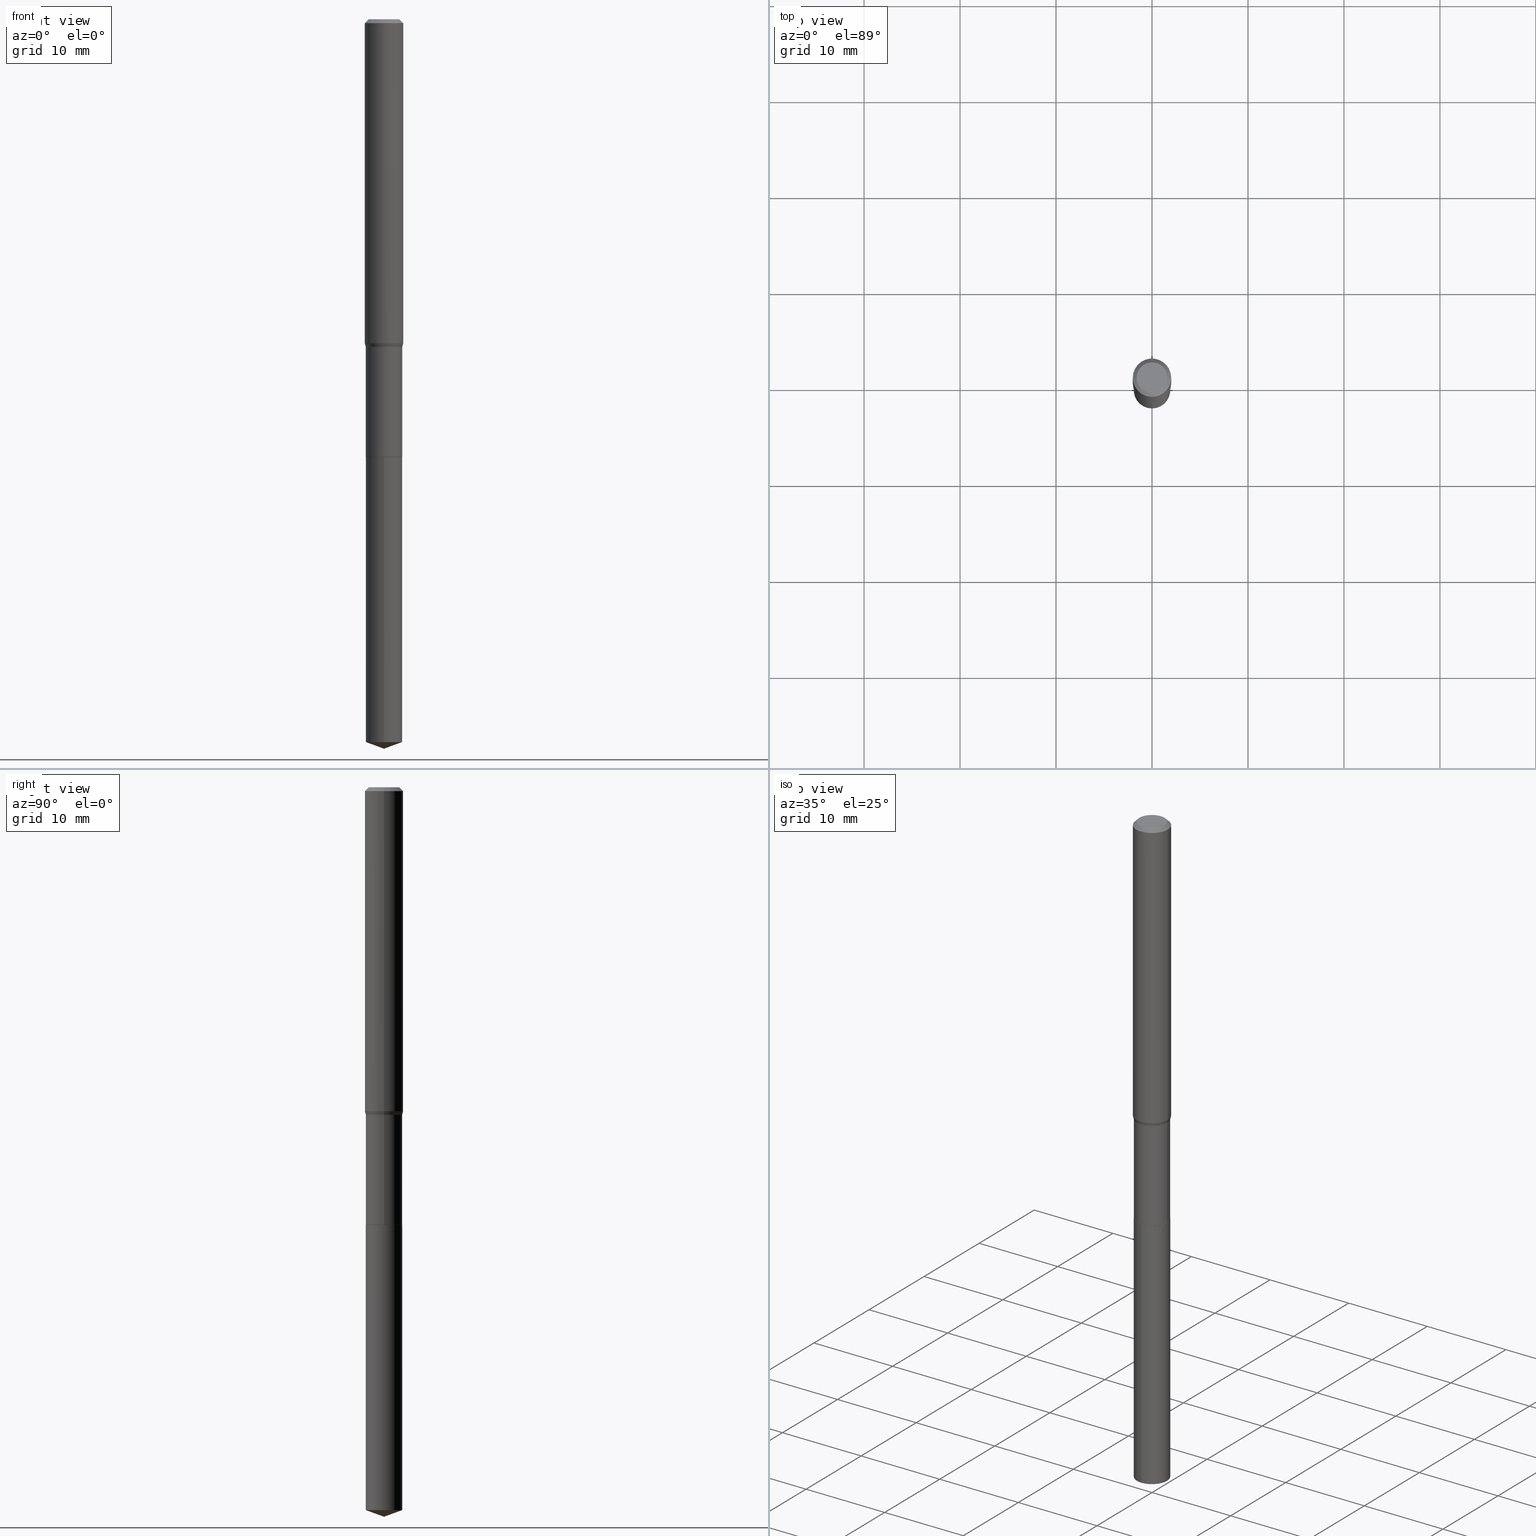
[diagram: canonical four-view strip — front | top / right | iso, engineering-drawing reading convention]
A machine part, canonical four-view strip (front | top / right | iso — engineering-drawing reading convention). The complete STEP part file that produces these views, byte-faithful:
ISO-10303-21;
HEADER;
FILE_DESCRIPTION (( 'STEP AP203' ),
    '1' );
FILE_NAME ('06028.STEP',
    '2024-04-23T19:04:33',
    ( '' ),
    ( '' ),
    'SwSTEP 2.0',
    'SolidWorks 2023',
    '' );
FILE_SCHEMA (( 'CONFIG_CONTROL_DESIGN' ));
ENDSEC;

DATA;
#1 = ORIENTED_EDGE ( 'NONE', *, *, #405, .F. ) ;
#2 = DIRECTION ( 'NONE',  ( 1.000000000000000000, -6.982962677686261977E-15, 0.000000000000000000 ) ) ;
#3 = EDGE_CURVE ( 'NONE', #382, #377, #412, .T. ) ;
#4 = APPROVAL ( #387, 'UNSPECIFIED' ) ;
#5 = AXIS2_PLACEMENT_3D ( 'NONE', #85, #93, #472 ) ;
#6 = CIRCLE ( 'NONE', #70, 0.07875000000000001443 ) ;
#7 = AXIS2_PLACEMENT_3D ( 'NONE', #413, #461, #341 ) ;
#8 = LINE ( 'NONE', #325, #365 ) ;
#9 = ADVANCED_FACE ( 'NONE', ( #198 ), #117, .T. ) ;
#10 = CARTESIAN_POINT ( 'NONE',  ( 4.390350147744175110E-29, -6.268256447625098416E-15, -1.795299999999999896 ) ) ;
#11 = FACE_OUTER_BOUND ( 'NONE', #319, .T. ) ;
#12 = MANIFOLD_SOLID_BREP ( 'Body-Move/Copy2[2]', #55 ) ;
#13 = CIRCLE ( 'NONE', #37, 0.07480000000000000537 ) ;
#14 = ORIENTED_EDGE ( 'NONE', *, *, #178, .F. ) ;
#15 = AXIS2_PLACEMENT_3D ( 'NONE', #10, #155, #20 ) ;
#16 = DIRECTION ( 'NONE',  ( -2.445468806185136597E-29, 3.491481338843145583E-15, 1.000000000000000000 ) ) ;
#17 = DIRECTION ( 'NONE',  ( -2.445469532295098656E-29, 3.491480299012352095E-15, 1.000000000000000000 ) ) ;
#18 = CALENDAR_DATE ( 2024, 23, 4 ) ;
#19 = LINE ( 'NONE', #385, #92 ) ;
#20 = DIRECTION ( 'NONE',  ( 1.000000000000000000, -6.982962677686268288E-15, 0.000000000000000000 ) ) ;
#21 = APPROVAL_ROLE ( '' ) ;
#22 = DIRECTION ( 'NONE',  ( -2.445468806185136597E-29, 3.491481338843145583E-15, 1.000000000000000000 ) ) ;
#23 = DATE_TIME_ROLE ( 'creation_date' ) ;
#24 = AXIS2_PLACEMENT_3D ( 'NONE', #238, #187, #420 ) ;
#25 = CARTESIAN_POINT ( 'NONE',  ( -0.07479999999999997762, 5.314859663485547800E-16, -3.679363447510668680E-30 ) ) ;
#26 = PERSON_AND_ORGANIZATION_ROLE ( 'creator' ) ;
#27 = DESIGN_CONTEXT ( 'detailed design', #333, 'design' ) ;
#28 = DIRECTION ( 'NONE',  ( 2.445468806185136597E-29, -3.491481338843145583E-15, -1.000000000000000000 ) ) ;
#29 = AXIS2_PLACEMENT_3D ( 'NONE', #138, #439, #223 ) ;
#30 = CC_DESIGN_APPROVAL ( #261, ( #443 ) ) ;
#31 = CARTESIAN_POINT ( 'NONE',  ( 3.285976434870968470E-29, -4.691503475003534862E-15, -1.343699999999999894 ) ) ;
#32 = CIRCLE ( 'NONE', #357, 0.07430000000000000493 ) ;
#33 = CARTESIAN_POINT ( 'NONE',  ( 5.314859663485988576E-16, 0.07479999999999373261, -1.795300000000000118 ) ) ;
#34 = CARTESIAN_POINT ( 'NONE',  ( 7.317089387580165340E-29, -1.044685820267485836E-14, -2.992100000000000204 ) ) ;
#35 = CARTESIAN_POINT ( 'NONE',  ( -5.223256082908888214E-16, -0.07480000000000626426, -1.795299999999999452 ) ) ;
#36 = CARTESIAN_POINT ( 'NONE',  ( -0.07480000000000000537, -4.947521124631050713E-15, -1.794799999999999951 ) ) ;
#37 = AXIS2_PLACEMENT_3D ( 'NONE', #477, #408, #397 ) ;
#38 = ADVANCED_FACE ( 'NONE', ( #335 ), #381, .T. ) ;
#39 = DIRECTION ( 'NONE',  ( -2.445468806185136597E-29, 3.491481338843145583E-15, 1.000000000000000000 ) ) ;
#40 = CARTESIAN_POINT ( 'NONE',  ( 4.390350147744175110E-29, -6.268256447625098416E-15, -1.795299999999999896 ) ) ;
#41 = CARTESIAN_POINT ( 'NONE',  ( 4.390350147744175110E-29, -6.268256447625098416E-15, -1.795299999999999896 ) ) ;
#42 = ORIENTED_EDGE ( 'NONE', *, *, #328, .T. ) ;
#43 =( LENGTH_UNIT ( ) NAMED_UNIT ( * ) SI_UNIT ( $, .METRE. ) );
#44 = PLANE ( 'NONE',  #275 ) ;
#45 = ADVANCED_FACE ( 'NONE', ( #164 ), #306, .T. ) ;
#46 = DIRECTION ( 'NONE',  ( 1.000000000000000000, -6.982962677686268288E-15, 0.000000000000000000 ) ) ;
#47 = EDGE_LOOP ( 'NONE', ( #129, #488, #210, #52 ) ) ;
#48 = DIRECTION ( 'NONE',  ( -2.445468806185136597E-29, 3.491481338843145583E-15, 1.000000000000000000 ) ) ;
#49 = ORIENTED_EDGE ( 'NONE', *, *, #226, .F. ) ;
#50 = CC_DESIGN_DATE_AND_TIME_ASSIGNMENT ( #466, #422, ( #443 ) ) ;
#51 = DIRECTION ( 'NONE',  ( -2.445468806185136597E-29, 3.491481338843145583E-15, 1.000000000000000000 ) ) ;
#52 = ORIENTED_EDGE ( 'NONE', *, *, #131, .F. ) ;
#53 = CARTESIAN_POINT ( 'NONE',  ( 9.427742298522557911E-47, -1.346031739168366987E-32, -3.855188123715866879E-18 ) ) ;
#54 = VERTEX_POINT ( 'NONE', #423 ) ;
#55 = CLOSED_SHELL ( 'NONE', ( #38, #200, #482, #258, #56, #336, #193, #45, #68, #242, #98, #474 ) ) ;
#56 = ADVANCED_FACE ( 'NONE', ( #419 ), #297, .T. ) ;
#57 = ORIENTED_EDGE ( 'NONE', *, *, #302, .T. ) ;
#58 = CARTESIAN_POINT ( 'NONE',  ( 4.390350147744175110E-29, -6.268256447625098416E-15, -1.795299999999999896 ) ) ;
#59 = EDGE_LOOP ( 'NONE', ( #354, #202 ) ) ;
#60 = APPROVAL_ROLE ( '' ) ;
#61 = ORIENTED_EDGE ( 'NONE', *, *, #459, .F. ) ;
#62 = VERTEX_POINT ( 'NONE', #136 ) ;
#63 = COORDINATED_UNIVERSAL_TIME_OFFSET ( 5, 0, .BEHIND. ) ;
#64 = EDGE_CURVE ( 'NONE', #421, #277, #281, .T. ) ;
#65 = DIRECTION ( 'NONE',  ( -1.000000000000000000, 6.982962677686267499E-15, 0.000000000000000000 ) ) ;
#66 = CONICAL_SURFACE ( 'NONE', #253, 0.07430000000000000493, 0.7853981633975507526 ) ;
#67 = FACE_OUTER_BOUND ( 'NONE', #209, .T. ) ;
#68 = ADVANCED_FACE ( 'NONE', ( #434 ), #442, .T. ) ;
#69 = VECTOR ( 'NONE', #315, 39.37007874015748143 ) ;
#70 = AXIS2_PLACEMENT_3D ( 'NONE', #288, #220, #440 ) ;
#71 = DIRECTION ( 'NONE',  ( -2.445469532295098656E-29, 3.491480299012352095E-15, 1.000000000000000000 ) ) ;
#72 = VECTOR ( 'NONE', #206, 39.37007874015748143 ) ;
#73 = ORIENTED_EDGE ( 'NONE', *, *, #427, .F. ) ;
#74 = DIMENSIONAL_EXPONENTS ( 1.000000000000000000, 0.000000000000000000, 0.000000000000000000, 0.000000000000000000, 0.000000000000000000, 0.000000000000000000, 0.000000000000000000 ) ;
#75 = CARTESIAN_POINT ( 'NONE',  ( 0.07479999999999994986, -5.213829083294466873E-15, -1.343699999999999894 ) ) ;
#76 = EDGE_CURVE ( 'NONE', #377, #112, #352, .T. ) ;
#77 = ORIENTED_EDGE ( 'NONE', *, *, #316, .F. ) ;
#78 = AXIS2_PLACEMENT_3D ( 'NONE', #367, #414, #84 ) ;
#79 = LINE ( 'NONE', #33, #69 ) ;
#80 = LOCAL_TIME ( 15, 4, 33.00000000000000000, #63 ) ;
#81 = FACE_OUTER_BOUND ( 'NONE', #240, .T. ) ;
#82 = EDGE_LOOP ( 'NONE', ( #162, #342, #179, #279 ) ) ;
#83 = APPROVAL ( #435, 'UNSPECIFIED' ) ;
#84 = DIRECTION ( 'NONE',  ( -6.982962677686265133E-15, -1.000000000000000000, 3.475157955500721003E-15 ) ) ;
#85 = CARTESIAN_POINT ( 'NONE',  ( 0.000000000000000000, 0.000000000000000000, 0.000000000000000000 ) ) ;
#86 = FACE_OUTER_BOUND ( 'NONE', #59, .T. ) ;
#87 = ORIENTED_EDGE ( 'NONE', *, *, #171, .F. ) ;
#88 = CALENDAR_DATE ( 2024, 23, 4 ) ;
#89 = CC_DESIGN_PERSON_AND_ORGANIZATION_ASSIGNMENT ( #300, #241, ( #394 ) ) ;
#90 = ORIENTED_EDGE ( 'NONE', *, *, #362, .T. ) ;
#91 = DIRECTION ( 'NONE',  ( -2.445469532295098656E-29, 3.491480299012352095E-15, 1.000000000000000000 ) ) ;
#92 = VECTOR ( 'NONE', #161, 39.37007874015748143 ) ;
#93 = DIRECTION ( 'NONE',  ( -2.445468806185136597E-29, 3.491481338843145583E-15, 1.000000000000000000 ) ) ;
#94 = CONICAL_SURFACE ( 'NONE', #78, 108.1684023407334365, 1.221730476396031495 ) ;
#95 = ORIENTED_EDGE ( 'NONE', *, *, #235, .F. ) ;
#96 = PERSON_AND_ORGANIZATION_ROLE ( 'design_supplier' ) ;
#97 = ORIENTED_EDGE ( 'NONE', *, *, #263, .T. ) ;
#98 = ADVANCED_FACE ( 'NONE', ( #481 ), #44, .F. ) ;
#99 = ORIENTED_EDGE ( 'NONE', *, *, #76, .T. ) ;
#100 = PERSON_AND_ORGANIZATION ( #455, #128 ) ;
#101 = EDGE_LOOP ( 'NONE', ( #463, #294, #208, #140 ) ) ;
#102 = CARTESIAN_POINT ( 'NONE',  ( 3.851613369741618303E-31, -5.499083108677994470E-17, -0.01575000000000011460 ) ) ;
#103 = PERSON_AND_ORGANIZATION ( #455, #128 ) ;
#104 =( GEOMETRIC_REPRESENTATION_CONTEXT ( 3 ) GLOBAL_UNCERTAINTY_ASSIGNED_CONTEXT ( ( #285 ) ) GLOBAL_UNIT_ASSIGNED_CONTEXT ( ( #230, #192, #156 ) ) REPRESENTATION_CONTEXT ( 'NONE', 'WORKASPACE' ) );
#105 = EDGE_LOOP ( 'NONE', ( #363, #124, #445 ) ) ;
#106 = ADVANCED_FACE ( 'NONE', ( #262 ), #94, .T. ) ;
#107 = FACE_OUTER_BOUND ( 'NONE', #386, .T. ) ;
#108 = ORIENTED_EDGE ( 'NONE', *, *, #310, .T. ) ;
#109 = CIRCLE ( 'NONE', #132, 0.07875000000000016709 ) ;
#110 = CIRCLE ( 'NONE', #205, 0.07480000000000000537 ) ;
#111 = CARTESIAN_POINT ( 'NONE',  ( 5.314859663486276510E-16, 0.07479999999999373261, -1.795300000000000118 ) ) ;
#112 = VERTEX_POINT ( 'NONE', #147 ) ;
#113 = DIRECTION ( 'NONE',  ( 6.676917655467968129E-15, 0.9396926207859097602, 0.3420201433256646606 ) ) ;
#114 = CARTESIAN_POINT ( 'NONE',  ( 4.390350147744175110E-29, -6.268256447625098416E-15, -1.795299999999999896 ) ) ;
#115 = DIRECTION ( 'NONE',  ( -2.438088387897960049E-29, 3.491481338843145188E-15, 1.000000000000000000 ) ) ;
#116 = DIRECTION ( 'NONE',  ( 1.000000000000000000, -6.982962677686265922E-15, 4.875905316334701673E-29 ) ) ;
#117 = CONICAL_SURFACE ( 'NONE', #173, 108.1684023407334365, 1.221730476396031495 ) ;
#118 = AXIS2_PLACEMENT_3D ( 'NONE', #298, #123, #268 ) ;
#119 = AXIS2_PLACEMENT_3D ( 'NONE', #320, #484, #441 ) ;
#120 = ADVANCED_FACE ( 'NONE', ( #107 ), #457, .T. ) ;
#121 = ORIENTED_EDGE ( 'NONE', *, *, #286, .F. ) ;
#122 = DIRECTION ( 'NONE',  ( -2.445468806185136597E-29, 3.491481338843145583E-15, 1.000000000000000000 ) ) ;
#123 = DIRECTION ( 'NONE',  ( -2.445468806185136597E-29, 3.491481338843145583E-15, 1.000000000000000000 ) ) ;
#124 = ORIENTED_EDGE ( 'NONE', *, *, #226, .T. ) ;
#125 = SECURITY_CLASSIFICATION_LEVEL ( 'unclassified' ) ;
#126 = VERTEX_POINT ( 'NONE', #312 ) ;
#127 = AXIS2_PLACEMENT_3D ( 'NONE', #174, #486, #399 ) ;
#128 = ORGANIZATION ( 'UNSPECIFIED', 'UNSPECIFIED', '' ) ;
#129 = ORIENTED_EDGE ( 'NONE', *, *, #257, .F. ) ;
#130 = DATE_AND_TIME ( #18, #137 ) ;
#131 = EDGE_CURVE ( 'NONE', #456, #133, #372, .T. ) ;
#132 = AXIS2_PLACEMENT_3D ( 'NONE', #190, #379, #271 ) ;
#133 = VERTEX_POINT ( 'NONE', #284 ) ;
#134 = CALENDAR_DATE ( 2024, 23, 4 ) ;
#135 = CC_DESIGN_PERSON_AND_ORGANIZATION_ASSIGNMENT ( #233, #96, ( #436 ) ) ;
#136 = CARTESIAN_POINT ( 'NONE',  ( -0.06300000000000000044, 4.674220642376242452E-16, -3.855188123719040041E-18 ) ) ;
#137 = LOCAL_TIME ( 15, 4, 33.00000000000000000, #245 ) ;
#138 = CARTESIAN_POINT ( 'NONE',  ( 4.389127413341082869E-29, -6.266510706955676913E-15, -1.794799999999999951 ) ) ;
#139 = CARTESIAN_POINT ( 'NONE',  ( -0.07479999999999994986, -4.160017508654980082E-15, -1.343699999999999894 ) ) ;
#140 = ORIENTED_EDGE ( 'NONE', *, *, #469, .F. ) ;
#141 = CARTESIAN_POINT ( 'NONE',  ( 7.317089410441971995E-29, -1.044685820267485994E-14, -2.992100000000000204 ) ) ;
#142 = ADVANCED_BREP_SHAPE_REPRESENTATION ( '06028', ( #331, #12, #339 ), #104 ) ;
#143 = DIRECTION ( 'NONE',  ( -6.982962677686265922E-15, -1.000000000000000000, 3.652203200085913145E-15 ) ) ;
#144 = CARTESIAN_POINT ( 'NONE',  ( 3.851613369741618303E-31, -5.499083108677994470E-17, -0.01575000000000011460 ) ) ;
#145 = CC_DESIGN_APPROVAL ( #83, ( #436 ) ) ;
#146 = DIRECTION ( 'NONE',  ( 1.000000000000000000, -6.982962677686266711E-15, 0.000000000000000000 ) ) ;
#147 = CARTESIAN_POINT ( 'NONE',  ( 0.07480000000000000537, -6.788836315246609713E-15, -1.794799999999999951 ) ) ;
#148 = DIRECTION ( 'NONE',  ( -2.445468806185136597E-29, 3.491481338843145583E-15, 1.000000000000000000 ) ) ;
#149 = LINE ( 'NONE', #364, #321 ) ;
#150 = EDGE_CURVE ( 'NONE', #433, #133, #180, .T. ) ;
#151 = CYLINDRICAL_SURFACE ( 'NONE', #402, 0.07875000000000008382 ) ;
#152 = CIRCLE ( 'NONE', #340, 0.06300000000000000044 ) ;
#153 = CONICAL_SURFACE ( 'NONE', #239, 0.07875000000000001443, 0.7853981633974452814 ) ;
#154 = FACE_OUTER_BOUND ( 'NONE', #232, .T. ) ;
#155 = DIRECTION ( 'NONE',  ( -2.445468806185136597E-29, 3.491481338843145583E-15, 1.000000000000000000 ) ) ;
#156 =( NAMED_UNIT ( * ) SI_UNIT ( $, .STERADIAN. ) SOLID_ANGLE_UNIT ( ) );
#157 = LOCAL_TIME ( 15, 4, 33.00000000000000000, #278 ) ;
#158 = CYLINDRICAL_SURFACE ( 'NONE', #118, 0.07479999999999997762 ) ;
#159 = ORIENTED_EDGE ( 'NONE', *, *, #171, .T. ) ;
#160 = EDGE_LOOP ( 'NONE', ( #87, #90, #309, #453 ) ) ;
#161 = DIRECTION ( 'NONE',  ( -2.445468806185136877E-29, 3.491481338843145188E-15, 1.000000000000000000 ) ) ;
#162 = ORIENTED_EDGE ( 'NONE', *, *, #378, .F. ) ;
#163 = LINE ( 'NONE', #468, #425 ) ;
#164 = FACE_OUTER_BOUND ( 'NONE', #47, .T. ) ;
#165 = APPROVAL_DATE_TIME ( #471, #83 ) ;
#166 = CIRCLE ( 'NONE', #24, 0.07480000000000000537 ) ;
#167 = CC_DESIGN_APPROVAL ( #4, ( #452 ) ) ;
#168 = ORIENTED_EDGE ( 'NONE', *, *, #3, .T. ) ;
#169 = DIRECTION ( 'NONE',  ( 2.445468806185136597E-29, -3.491481338843145583E-15, -1.000000000000000000 ) ) ;
#170 = PERSON_AND_ORGANIZATION_ROLE ( 'classification_officer' ) ;
#171 = EDGE_CURVE ( 'NONE', #314, #444, #79, .T. ) ;
#172 = DIRECTION ( 'NONE',  ( -2.445469532295098656E-29, 3.491480299012352095E-15, 1.000000000000000000 ) ) ;
#173 = AXIS2_PLACEMENT_3D ( 'NONE', #349, #17, #244 ) ;
#174 = CARTESIAN_POINT ( 'NONE',  ( 3.285976434870968470E-29, -4.691503475003534862E-15, -1.343699999999999894 ) ) ;
#175 = CARTESIAN_POINT ( 'NONE',  ( -5.223256082908604224E-16, -0.07480000000001037208, -2.964875026476887943 ) ) ;
#176 = DIRECTION ( 'NONE',  ( -2.445468806185136597E-29, 3.491481338843145583E-15, 1.000000000000000000 ) ) ;
#177 = ORIENTED_EDGE ( 'NONE', *, *, #378, .T. ) ;
#178 = EDGE_CURVE ( 'NONE', #416, #126, #287, .T. ) ;
#179 = ORIENTED_EDGE ( 'NONE', *, *, #370, .T. ) ;
#180 = LINE ( 'NONE', #489, #283 ) ;
#181 = VECTOR ( 'NONE', #355, 39.37007874015748854 ) ;
#182 = CARTESIAN_POINT ( 'NONE',  ( 0.06300000000000000044, -5.137332111354473202E-16, -3.855188123712532709E-18 ) ) ;
#183 = DIRECTION ( 'NONE',  ( 1.000000000000000000, -6.982962677686268288E-15, 0.000000000000000000 ) ) ;
#184 = DIRECTION ( 'NONE',  ( -2.445469532295098656E-29, 3.491480299012352095E-15, 1.000000000000000000 ) ) ;
#185 = CIRCLE ( 'NONE', #475, 0.07875000000000016709 ) ;
#186 = AXIS2_PLACEMENT_3D ( 'NONE', #217, #172, #254 ) ;
#187 = DIRECTION ( 'NONE',  ( -2.445469532295098656E-29, 3.491480299012352095E-15, 1.000000000000000000 ) ) ;
#188 = ORIENTED_EDGE ( 'NONE', *, *, #3, .F. ) ;
#189 = FACE_OUTER_BOUND ( 'NONE', #229, .T. ) ;
#190 = CARTESIAN_POINT ( 'NONE',  ( 3.249926310230585546E-29, -4.640033451290079413E-15, -1.328958399310102179 ) ) ;
#191 = ORIENTED_EDGE ( 'NONE', *, *, #257, .T. ) ;
#192 =( NAMED_UNIT ( * ) PLANE_ANGLE_UNIT ( ) SI_UNIT ( $, .RADIAN. ) );
#193 = ADVANCED_FACE ( 'NONE', ( #248 ), #236, .T. ) ;
#194 = CARTESIAN_POINT ( 'NONE',  ( 5.314859663486275524E-16, 0.07479999999998968030, -2.964875026476887943 ) ) ;
#195 = ORIENTED_EDGE ( 'NONE', *, *, #302, .F. ) ;
#196 = PRODUCT_DEFINITION_SHAPE ( 'NONE', 'NONE',  #452 ) ;
#197 = CARTESIAN_POINT ( 'NONE',  ( -0.07875000000000001443, 4.949174797810137153E-16, -0.01575000000000011460 ) ) ;
#198 = FACE_OUTER_BOUND ( 'NONE', #404, .T. ) ;
#199 = APPROVAL_DATE_TIME ( #130, #261 ) ;
#200 = ADVANCED_FACE ( 'NONE', ( #67 ), #153, .T. ) ;
#201 = DIRECTION ( 'NONE',  ( 2.445469532295098376E-29, -3.491480299012352095E-15, -1.000000000000000000 ) ) ;
#202 = ORIENTED_EDGE ( 'NONE', *, *, #323, .T. ) ;
#203 = APPROVAL_DATE_TIME ( #207, #4 ) ;
#204 = VERTEX_POINT ( 'NONE', #446 ) ;
#205 = AXIS2_PLACEMENT_3D ( 'NONE', #360, #324, #2 ) ;
#206 = DIRECTION ( 'NONE',  ( -2.445468806185136877E-29, 3.491481338843145188E-15, 1.000000000000000000 ) ) ;
#207 = DATE_AND_TIME ( #424, #157 ) ;
#208 = ORIENTED_EDGE ( 'NONE', *, *, #222, .F. ) ;
#209 = EDGE_LOOP ( 'NONE', ( #269, #391, #406, #195 ) ) ;
#210 = ORIENTED_EDGE ( 'NONE', *, *, #316, .T. ) ;
#211 = CIRCLE ( 'NONE', #127, 0.07479999999999994986 ) ;
#212 = LINE ( 'NONE', #141, #384 ) ;
#213 = CIRCLE ( 'NONE', #483, 0.07480000000000000537 ) ;
#214 = CARTESIAN_POINT ( 'NONE',  ( -0.07875000000000001443, -1.787959736777349389E-15, -0.01575000000000011460 ) ) ;
#215 = EDGE_CURVE ( 'NONE', #112, #421, #252, .T. ) ;
#216 = ORIENTED_EDGE ( 'NONE', *, *, #131, .T. ) ;
#217 = CARTESIAN_POINT ( 'NONE',  ( 4.390350147744175110E-29, -6.268256447625098416E-15, -1.795299999999999896 ) ) ;
#218 = DIRECTION ( 'NONE',  ( -2.445468806185136597E-29, 3.491481338843145583E-15, 1.000000000000000000 ) ) ;
#219 = APPROVAL_PERSON_ORGANIZATION ( #100, #261, #270 ) ;
#220 = DIRECTION ( 'NONE',  ( -2.445468806185136597E-29, 3.491481338843145583E-15, 1.000000000000000000 ) ) ;
#221 = AXIS2_PLACEMENT_3D ( 'NONE', #431, #122, #346 ) ;
#222 = EDGE_CURVE ( 'NONE', #467, #277, #211, .T. ) ;
#223 = DIRECTION ( 'NONE',  ( 1.000000000000000000, -6.982962677686261977E-15, 0.000000000000000000 ) ) ;
#224 = DIRECTION ( 'NONE',  ( -0.7071067811866199593, 7.493145998870616062E-15, 0.7071067811864750752 ) ) ;
#225 = ORIENTED_EDGE ( 'NONE', *, *, #370, .F. ) ;
#226 = EDGE_CURVE ( 'NONE', #465, #314, #212, .T. ) ;
#227 = CARTESIAN_POINT ( 'NONE',  ( 4.390350147744175110E-29, -6.268256447625098416E-15, -1.795299999999999896 ) ) ;
#228 = CARTESIAN_POINT ( 'NONE',  ( 4.390350147744175110E-29, -6.268256447625098416E-15, -1.795299999999999896 ) ) ;
#229 = EDGE_LOOP ( 'NONE', ( #460, #191, #73, #77 ) ) ;
#230 =( CONVERSION_BASED_UNIT ( 'INCH', #327 ) LENGTH_UNIT ( ) NAMED_UNIT ( #74 ) );
#231 = PLANE ( 'NONE',  #373 ) ;
#232 = EDGE_LOOP ( 'NONE', ( #267, #177, #121, #225 ) ) ;
#233 = PERSON_AND_ORGANIZATION ( #455, #128 ) ;
#234 = EDGE_LOOP ( 'NONE', ( #97, #243, #375, #299 ) ) ;
#235 = EDGE_CURVE ( 'NONE', #126, #444, #213, .T. ) ;
#236 = CONICAL_SURFACE ( 'NONE', #255, 0.07479999999999994986, 0.2617993877991521279 ) ;
#237 = APPROVAL_PERSON_ORGANIZATION ( #273, #4, #60 ) ;
#238 = CARTESIAN_POINT ( 'NONE',  ( 7.250510240726639797E-29, -1.035180461078600509E-14, -2.964875026476887943 ) ) ;
#239 = AXIS2_PLACEMENT_3D ( 'NONE', #144, #28, #317 ) ;
#240 = EDGE_LOOP ( 'NONE', ( #108, #380 ) ) ;
#241 = PERSON_AND_ORGANIZATION_ROLE ( 'design_owner' ) ;
#242 = ADVANCED_FACE ( 'NONE', ( #81 ), #415, .F. ) ;
#243 = ORIENTED_EDGE ( 'NONE', *, *, #485, .T. ) ;
#244 = DIRECTION ( 'NONE',  ( -6.982962677686265133E-15, -1.000000000000000000, 3.475157955500721003E-15 ) ) ;
#245 = COORDINATED_UNIVERSAL_TIME_OFFSET ( 5, 0, .BEHIND. ) ;
#246 = AXIS2_PLACEMENT_3D ( 'NONE', #487, #71, #143 ) ;
#247 = PERSON_AND_ORGANIZATION_ROLE ( 'creator' ) ;
#248 = FACE_OUTER_BOUND ( 'NONE', #82, .T. ) ;
#249 = DIRECTION ( 'NONE',  ( 1.000000000000000000, -6.982962677686266711E-15, 0.000000000000000000 ) ) ;
#250 = EDGE_CURVE ( 'NONE', #204, #54, #185, .T. ) ;
#251 = CARTESIAN_POINT ( 'NONE',  ( 0.07430000000000000493, -6.787090574577188210E-15, -1.795299999999999896 ) ) ;
#252 = CIRCLE ( 'NONE', #29, 0.07480000000000000537 ) ;
#253 = AXIS2_PLACEMENT_3D ( 'NONE', #114, #39, #183 ) ;
#254 = DIRECTION ( 'NONE',  ( -6.982962677686265922E-15, -1.000000000000000000, 3.652203200085913145E-15 ) ) ;
#255 = AXIS2_PLACEMENT_3D ( 'NONE', #396, #176, #249 ) ;
#256 = CARTESIAN_POINT ( 'NONE',  ( 9.427742298522557911E-47, -1.346031739168366987E-32, -3.855188123715866879E-18 ) ) ;
#257 = EDGE_CURVE ( 'NONE', #204, #456, #19, .T. ) ;
#258 = ADVANCED_FACE ( 'NONE', ( #154 ), #454, .T. ) ;
#259 = APPLICATION_PROTOCOL_DEFINITION ( 'international standard', 'config_control_design', 1994, #326 ) ;
#260 = DIRECTION ( 'NONE',  ( 1.000000000000000000, -6.982962677686265922E-15, 4.876176775795935793E-29 ) ) ;
#261 = APPROVAL ( #473, 'UNSPECIFIED' ) ;
#262 = FACE_OUTER_BOUND ( 'NONE', #105, .T. ) ;
#263 = EDGE_CURVE ( 'NONE', #377, #382, #32, .T. ) ;
#264 = EDGE_LOOP ( 'NONE', ( #338, #295, #57, #216 ) ) ;
#265 = DIRECTION ( 'NONE',  ( 1.000000000000000000, -6.982962677686266711E-15, 0.000000000000000000 ) ) ;
#266 = AXIS2_PLACEMENT_3D ( 'NONE', #31, #218, #146 ) ;
#267 = ORIENTED_EDGE ( 'NONE', *, *, #222, .T. ) ;
#268 = DIRECTION ( 'NONE',  ( 1.000000000000000000, -6.982962677686266711E-15, 4.876176775795935793E-29 ) ) ;
#269 = ORIENTED_EDGE ( 'NONE', *, *, #388, .F. ) ;
#270 = APPROVAL_ROLE ( '' ) ;
#271 = DIRECTION ( 'NONE',  ( 1.000000000000000000, -6.982962677686271444E-15, 0.000000000000000000 ) ) ;
#272 = ORIENTED_EDGE ( 'NONE', *, *, #485, .F. ) ;
#273 = PERSON_AND_ORGANIZATION ( #455, #128 ) ;
#274 = CC_DESIGN_DATE_AND_TIME_ASSIGNMENT ( #347, #23, ( #452 ) ) ;
#275 = AXIS2_PLACEMENT_3D ( 'NONE', #40, #115, #260 ) ;
#276 = VECTOR ( 'NONE', #449, 39.37007874015748143 ) ;
#277 = VERTEX_POINT ( 'NONE', #464 ) ;
#278 = COORDINATED_UNIVERSAL_TIME_OFFSET ( 5, 0, .BEHIND. ) ;
#279 = ORIENTED_EDGE ( 'NONE', *, *, #250, .F. ) ;
#280 = APPLICATION_PROTOCOL_DEFINITION ( 'international standard', 'config_control_design', 1994, #333 ) ;
#281 = LINE ( 'NONE', #25, #72 ) ;
#282 = VECTOR ( 'NONE', #318, 39.37007874015748854 ) ;
#283 = VECTOR ( 'NONE', #407, 39.37007874015748143 ) ;
#284 = CARTESIAN_POINT ( 'NONE',  ( 0.07875000000000001443, -6.048991419545735677E-16, -0.01575000000000011460 ) ) ;
#285 = UNCERTAINTY_MEASURE_WITH_UNIT (LENGTH_MEASURE( 1.000000000000000082E-05 ), #230, 'distance_accuracy_value', 'NONE');
#286 = EDGE_CURVE ( 'NONE', #54, #204, #109, .T. ) ;
#287 = LINE ( 'NONE', #35, #428 ) ;
#288 = CARTESIAN_POINT ( 'NONE',  ( 3.851613369741618303E-31, -5.499083108677994470E-17, -0.01575000000000011460 ) ) ;
#289 = FACE_OUTER_BOUND ( 'NONE', #160, .T. ) ;
#290 = CIRCLE ( 'NONE', #476, 0.06300000000000000044 ) ;
#291 = LINE ( 'NONE', #292, #276 ) ;
#292 = CARTESIAN_POINT ( 'NONE',  ( 0.07479999999999997762, -5.223256082909326032E-16, 3.647380228295358762E-30 ) ) ;
#293 = CARTESIAN_POINT ( 'NONE',  ( 0.000000000000000000, 0.000000000000000000, 0.000000000000000000 ) ) ;
#294 = ORIENTED_EDGE ( 'NONE', *, *, #64, .T. ) ;
#295 = ORIENTED_EDGE ( 'NONE', *, *, #310, .F. ) ;
#296 = DIRECTION ( 'NONE',  ( 0.000000000000000000, 0.000000000000000000, 1.000000000000000000 ) ) ;
#297 = CYLINDRICAL_SURFACE ( 'NONE', #5, 0.07479999999999997762 ) ;
#298 = CARTESIAN_POINT ( 'NONE',  ( 0.000000000000000000, 0.000000000000000000, 0.000000000000000000 ) ) ;
#299 = ORIENTED_EDGE ( 'NONE', *, *, #76, .F. ) ;
#300 = PERSON_AND_ORGANIZATION ( #455, #128 ) ;
#301 = ORIENTED_EDGE ( 'NONE', *, *, #459, .T. ) ;
#302 = EDGE_CURVE ( 'NONE', #62, #456, #374, .T. ) ;
#303 = DIRECTION ( 'NONE',  ( 1.000000000000000000, -6.982962677686265922E-15, 4.875905316334701673E-29 ) ) ;
#304 = CARTESIAN_POINT ( 'NONE',  ( 0.000000000000000000, 0.000000000000000000, 0.000000000000000000 ) ) ;
#305 = DIRECTION ( 'NONE',  ( -6.982962677686265922E-15, -1.000000000000000000, 3.652203200085913145E-15 ) ) ;
#306 = CYLINDRICAL_SURFACE ( 'NONE', #313, 0.07875000000000008382 ) ;
#307 = COORDINATED_UNIVERSAL_TIME_OFFSET ( 5, 0, .BEHIND. ) ;
#308 = AXIS2_PLACEMENT_3D ( 'NONE', #345, #458, #265 ) ;
#309 = ORIENTED_EDGE ( 'NONE', *, *, #178, .T. ) ;
#310 = EDGE_CURVE ( 'NONE', #62, #433, #152, .T. ) ;
#311 = DIRECTION ( 'NONE',  ( 0.7071067811866199593, -2.468850131083015945E-15, 0.7071067811864750752 ) ) ;
#312 = CARTESIAN_POINT ( 'NONE',  ( -5.223256082908888214E-16, -0.07480000000000626426, -1.795299999999999452 ) ) ;
#313 = AXIS2_PLACEMENT_3D ( 'NONE', #304, #22, #470 ) ;
#314 = VERTEX_POINT ( 'NONE', #194 ) ;
#315 = DIRECTION ( 'NONE',  ( -2.445469532295098656E-29, 3.491480299012352095E-15, 1.000000000000000000 ) ) ;
#316 = EDGE_CURVE ( 'NONE', #54, #133, #163, .T. ) ;
#317 = DIRECTION ( 'NONE',  ( -1.000000000000000000, 6.982962677686267499E-15, 0.000000000000000000 ) ) ;
#318 = DIRECTION ( 'NONE',  ( 0.2588190451025233485, 1.565188264969605993E-15, 0.9659258262890676461 ) ) ;
#319 = EDGE_LOOP ( 'NONE', ( #322, #301, #359, #1 ) ) ;
#320 = CARTESIAN_POINT ( 'NONE',  ( 3.851613369741618303E-31, -5.499083108677994470E-17, -0.01575000000000011460 ) ) ;
#321 = VECTOR ( 'NONE', #361, 39.37007874015748854 ) ;
#322 = ORIENTED_EDGE ( 'NONE', *, *, #64, .F. ) ;
#323 = EDGE_CURVE ( 'NONE', #444, #126, #330, .T. ) ;
#324 = DIRECTION ( 'NONE',  ( -2.445468806185136597E-29, 3.491481338843145583E-15, 1.000000000000000000 ) ) ;
#325 = CARTESIAN_POINT ( 'NONE',  ( -0.07430000000000000493, -5.740323194955344535E-15, -1.795299999999999896 ) ) ;
#326 = APPLICATION_CONTEXT ( 'configuration controlled 3d designs of mechanical parts and assemblies' ) ;
#327 = LENGTH_MEASURE_WITH_UNIT ( LENGTH_MEASURE( 0.02539999999999999897 ), #43 );
#328 = EDGE_CURVE ( 'NONE', #416, #314, #166, .T. ) ;
#329 = DIRECTION ( 'NONE',  ( -2.445469532295098656E-29, 3.491480299012352095E-15, 1.000000000000000000 ) ) ;
#330 = CIRCLE ( 'NONE', #401, 0.07480000000000000537 ) ;
#331 = MANIFOLD_SOLID_BREP ( 'Body-Move/Copy2[1]', #366 ) ;
#332 = CARTESIAN_POINT ( 'NONE',  ( 0.000000000000000000, 0.000000000000000000, 0.000000000000000000 ) ) ;
#333 = APPLICATION_CONTEXT ( 'configuration controlled 3d designs of mechanical parts and assemblies' ) ;
#334 = DIRECTION ( 'NONE',  ( -0.7071067811865453523, 2.468850131082234184E-15, -0.7071067811865496822 ) ) ;
#335 = FACE_OUTER_BOUND ( 'NONE', #234, .T. ) ;
#336 = ADVANCED_FACE ( 'NONE', ( #11 ), #158, .T. ) ;
#337 = DIRECTION ( 'NONE',  ( 1.000000000000000000, -6.982962677686271444E-15, 0.000000000000000000 ) ) ;
#338 = ORIENTED_EDGE ( 'NONE', *, *, #150, .F. ) ;
#339 = AXIS2_PLACEMENT_3D ( 'NONE', #293, #296, #480 ) ;
#340 = AXIS2_PLACEMENT_3D ( 'NONE', #53, #48, #303 ) ;
#341 = DIRECTION ( 'NONE',  ( -1.000000000000000000, 6.982962677686265922E-15, -4.876176775795935793E-29 ) ) ;
#342 = ORIENTED_EDGE ( 'NONE', *, *, #405, .T. ) ;
#343 = CALENDAR_DATE ( 2024, 23, 4 ) ;
#344 = DIRECTION ( 'NONE',  ( 6.982962677686265922E-15, 1.000000000000000000, -3.491480299012352095E-15 ) ) ;
#345 = CARTESIAN_POINT ( 'NONE',  ( 3.285976434870968470E-29, -4.691503475003534862E-15, -1.343699999999999894 ) ) ;
#346 = DIRECTION ( 'NONE',  ( 1.000000000000000000, -6.982962677686268288E-15, 0.000000000000000000 ) ) ;
#347 = DATE_AND_TIME ( #88, #462 ) ;
#348 = ADVANCED_FACE ( 'NONE', ( #86 ), #231, .F. ) ;
#349 = CARTESIAN_POINT ( 'NONE',  ( -8.896123995911917721E-28, 1.270129942223418064E-13, 36.37797874015748079 ) ) ;
#350 = ORIENTED_EDGE ( 'NONE', *, *, #362, .F. ) ;
#351 = LOCAL_TIME ( 15, 4, 33.00000000000000000, #307 ) ;
#352 = LINE ( 'NONE', #392, #478 ) ;
#353 = PERSON_AND_ORGANIZATION ( #455, #128 ) ;
#354 = ORIENTED_EDGE ( 'NONE', *, *, #235, .T. ) ;
#355 = DIRECTION ( 'NONE',  ( -0.2588190451025233485, 5.211531920934561297E-15, 0.9659258262890676461 ) ) ;
#356 = CC_DESIGN_PERSON_AND_ORGANIZATION_ASSIGNMENT ( #353, #26, ( #452 ) ) ;
#357 = AXIS2_PLACEMENT_3D ( 'NONE', #227, #51, #46 ) ;
#358 = CIRCLE ( 'NONE', #266, 0.07479999999999994986 ) ;
#359 = ORIENTED_EDGE ( 'NONE', *, *, #469, .T. ) ;
#360 = CARTESIAN_POINT ( 'NONE',  ( 4.389127413341082869E-29, -6.266510706955676913E-15, -1.794799999999999951 ) ) ;
#361 = DIRECTION ( 'NONE',  ( -6.561838499445203218E-15, -0.9396926207859074287, 0.3420201433256712664 ) ) ;
#362 = EDGE_CURVE ( 'NONE', #314, #416, #13, .T. ) ;
#363 = ORIENTED_EDGE ( 'NONE', *, *, #411, .F. ) ;
#364 = CARTESIAN_POINT ( 'NONE',  ( 7.317086780409735276E-29, -1.044686193629130531E-14, -2.992100000000000204 ) ) ;
#365 = VECTOR ( 'NONE', #224, 39.37007874015748143 ) ;
#366 = CLOSED_SHELL ( 'NONE', ( #120, #106, #9, #437, #348 ) ) ;
#367 = CARTESIAN_POINT ( 'NONE',  ( -8.896123995911917721E-28, 1.270129942223418064E-13, 36.37797874015748079 ) ) ;
#368 = FACE_OUTER_BOUND ( 'NONE', #479, .T. ) ;
#369 = DIRECTION ( 'NONE',  ( 1.000000000000000000, -6.982962677686267499E-15, 4.876176775795935232E-29 ) ) ;
#370 = EDGE_CURVE ( 'NONE', #467, #54, #447, .T. ) ;
#371 = DIRECTION ( 'NONE',  ( -2.445468806185136877E-29, 3.491481338843145188E-15, 1.000000000000000000 ) ) ;
#372 = CIRCLE ( 'NONE', #119, 0.07875000000000001443 ) ;
#373 = AXIS2_PLACEMENT_3D ( 'NONE', #58, #201, #344 ) ;
#374 = LINE ( 'NONE', #197, #403 ) ;
#375 = ORIENTED_EDGE ( 'NONE', *, *, #215, .F. ) ;
#376 = CARTESIAN_POINT ( 'NONE',  ( 3.249926310230585546E-29, -4.640033451290079413E-15, -1.328958399310102179 ) ) ;
#377 = VERTEX_POINT ( 'NONE', #251 ) ;
#378 = EDGE_CURVE ( 'NONE', #277, #204, #490, .T. ) ;
#379 = DIRECTION ( 'NONE',  ( -2.445468806185136597E-29, 3.491481338843145583E-15, 1.000000000000000000 ) ) ;
#380 = ORIENTED_EDGE ( 'NONE', *, *, #388, .T. ) ;
#381 = CONICAL_SURFACE ( 'NONE', #15, 0.07430000000000000493, 0.7853981633975507526 ) ;
#382 = VERTEX_POINT ( 'NONE', #450 ) ;
#383 = APPROVAL_PERSON_ORGANIZATION ( #395, #83, #21 ) ;
#384 = VECTOR ( 'NONE', #113, 39.37007874015748854 ) ;
#385 = CARTESIAN_POINT ( 'NONE',  ( -0.07875000000000008382, 5.595524044110794920E-16, -3.873661383575742696E-30 ) ) ;
#386 = EDGE_LOOP ( 'NONE', ( #42, #159, #95, #14 ) ) ;
#387 = APPROVAL_STATUS ( 'not_yet_approved' ) ;
#388 = EDGE_CURVE ( 'NONE', #433, #62, #290, .T. ) ;
#389 = EDGE_LOOP ( 'NONE', ( #426, #188 ) ) ;
#390 = MECHANICAL_CONTEXT ( 'NONE', #326, 'mechanical' ) ;
#391 = ORIENTED_EDGE ( 'NONE', *, *, #150, .T. ) ;
#392 = CARTESIAN_POINT ( 'NONE',  ( 0.07430000000000000493, -6.787090574577188210E-15, -1.795299999999999896 ) ) ;
#393 = SHAPE_DEFINITION_REPRESENTATION ( #196, #142 ) ;
#394 = PRODUCT ( '06028', '06028', '', ( #390 ) ) ;
#395 = PERSON_AND_ORGANIZATION ( #455, #128 ) ;
#396 = CARTESIAN_POINT ( 'NONE',  ( 3.285976434870968470E-29, -4.691503475003534862E-15, -1.343699999999999894 ) ) ;
#397 = DIRECTION ( 'NONE',  ( -6.982962677686265922E-15, -1.000000000000000000, 0.000000000000000000 ) ) ;
#398 = CC_DESIGN_PERSON_AND_ORGANIZATION_ASSIGNMENT ( #432, #247, ( #436 ) ) ;
#399 = DIRECTION ( 'NONE',  ( 1.000000000000000000, -6.982962677686266711E-15, 0.000000000000000000 ) ) ;
#400 = CYLINDRICAL_SURFACE ( 'NONE', #246, 0.07480000000000000537 ) ;
#401 = AXIS2_PLACEMENT_3D ( 'NONE', #228, #91, #305 ) ;
#402 = AXIS2_PLACEMENT_3D ( 'NONE', #332, #417, #369 ) ;
#403 = VECTOR ( 'NONE', #334, 39.37007874015748143 ) ;
#404 = EDGE_LOOP ( 'NONE', ( #49, #429, #350 ) ) ;
#405 = EDGE_CURVE ( 'NONE', #277, #467, #358, .T. ) ;
#406 = ORIENTED_EDGE ( 'NONE', *, *, #427, .T. ) ;
#407 = DIRECTION ( 'NONE',  ( 0.7071067811865453523, -7.319954787623248157E-15, -0.7071067811865496822 ) ) ;
#408 = DIRECTION ( 'NONE',  ( -2.445469532295098656E-29, 3.491480299012352095E-15, 1.000000000000000000 ) ) ;
#409 = CARTESIAN_POINT ( 'NONE',  ( 0.07479999999999994986, -5.213829083294466873E-15, -1.343699999999999894 ) ) ;
#410 = CC_DESIGN_SECURITY_CLASSIFICATION ( #443, ( #436 ) ) ;
#411 = EDGE_CURVE ( 'NONE', #465, #416, #149, .T. ) ;
#412 = CIRCLE ( 'NONE', #221, 0.07430000000000000493 ) ;
#413 = CARTESIAN_POINT ( 'NONE',  ( 4.713871149261278955E-47, -6.730158695841834933E-33, -1.927594061857933439E-18 ) ) ;
#414 = DIRECTION ( 'NONE',  ( -2.445469532295098656E-29, 3.491480299012352095E-15, 1.000000000000000000 ) ) ;
#415 = PLANE ( 'NONE',  #7 ) ;
#416 = VERTEX_POINT ( 'NONE', #175 ) ;
#417 = DIRECTION ( 'NONE',  ( -2.445468806185136597E-29, 3.491481338843145583E-15, 1.000000000000000000 ) ) ;
#418 = DIRECTION ( 'NONE',  ( -6.982962677686265922E-15, -1.000000000000000000, 3.652203200085913145E-15 ) ) ;
#419 = FACE_OUTER_BOUND ( 'NONE', #101, .T. ) ;
#420 = DIRECTION ( 'NONE',  ( -6.982962677686265922E-15, -1.000000000000000000, 0.000000000000000000 ) ) ;
#421 = VERTEX_POINT ( 'NONE', #36 ) ;
#422 = DATE_TIME_ROLE ( 'classification_date' ) ;
#423 = CARTESIAN_POINT ( 'NONE',  ( 0.07875000000000016709, -5.189941762157874337E-15, -1.328958399310102179 ) ) ;
#424 = CALENDAR_DATE ( 2024, 23, 4 ) ;
#425 = VECTOR ( 'NONE', #371, 39.37007874015748143 ) ;
#426 = ORIENTED_EDGE ( 'NONE', *, *, #263, .F. ) ;
#427 = EDGE_CURVE ( 'NONE', #133, #456, #6, .T. ) ;
#428 = VECTOR ( 'NONE', #329, 39.37007874015748143 ) ;
#429 = ORIENTED_EDGE ( 'NONE', *, *, #411, .T. ) ;
#430 = COORDINATED_UNIVERSAL_TIME_OFFSET ( 5, 0, .BEHIND. ) ;
#431 = CARTESIAN_POINT ( 'NONE',  ( 4.390350147744175110E-29, -6.268256447625098416E-15, -1.795299999999999896 ) ) ;
#432 = PERSON_AND_ORGANIZATION ( #455, #128 ) ;
#433 = VERTEX_POINT ( 'NONE', #182 ) ;
#434 = FACE_OUTER_BOUND ( 'NONE', #264, .T. ) ;
#435 = APPROVAL_STATUS ( 'not_yet_approved' ) ;
#436 = PRODUCT_DEFINITION_FORMATION_WITH_SPECIFIED_SOURCE ( 'ANY', '', #394, .NOT_KNOWN. ) ;
#437 = ADVANCED_FACE ( 'NONE', ( #289 ), #400, .T. ) ;
#438 = CC_DESIGN_PERSON_AND_ORGANIZATION_ASSIGNMENT ( #103, #170, ( #443 ) ) ;
#439 = DIRECTION ( 'NONE',  ( -2.445468806185136597E-29, 3.491481338843145583E-15, 1.000000000000000000 ) ) ;
#440 = DIRECTION ( 'NONE',  ( 1.000000000000000000, -6.982962677686267499E-15, 0.000000000000000000 ) ) ;
#441 = DIRECTION ( 'NONE',  ( 1.000000000000000000, -6.982962677686267499E-15, 0.000000000000000000 ) ) ;
#442 = CONICAL_SURFACE ( 'NONE', #451, 0.07875000000000001443, 0.7853981633974452814 ) ;
#443 = SECURITY_CLASSIFICATION ( '', '', #125 ) ;
#444 = VERTEX_POINT ( 'NONE', #111 ) ;
#445 = ORIENTED_EDGE ( 'NONE', *, *, #328, .F. ) ;
#446 = CARTESIAN_POINT ( 'NONE',  ( -0.07875000000000016709, -4.080481046878999034E-15, -1.328958399310102179 ) ) ;
#447 = LINE ( 'NONE', #75, #282 ) ;
#448 = PRODUCT_RELATED_PRODUCT_CATEGORY ( 'detail', '', ( #394 ) ) ;
#449 = DIRECTION ( 'NONE',  ( -2.445468806185136877E-29, 3.491481338843145188E-15, 1.000000000000000000 ) ) ;
#450 = CARTESIAN_POINT ( 'NONE',  ( -0.07430000000000000493, -5.737673967781233334E-15, -1.795299999999999896 ) ) ;
#451 = AXIS2_PLACEMENT_3D ( 'NONE', #102, #169, #65 ) ;
#452 = PRODUCT_DEFINITION ( 'UNKNOWN', '', #436, #27 ) ;
#453 = ORIENTED_EDGE ( 'NONE', *, *, #323, .F. ) ;
#454 = CONICAL_SURFACE ( 'NONE', #308, 0.07479999999999994986, 0.2617993877991521279 ) ;
#455 = PERSON ( 'UNSPECIFIED', 'UNSPECIFIED', 'UNSPECIFIED', ('UNSPECIFIED'), ('UNSPECIFIED'), ('UNSPECIFIED') ) ;
#456 = VERTEX_POINT ( 'NONE', #214 ) ;
#457 = CYLINDRICAL_SURFACE ( 'NONE', #186, 0.07480000000000000537 ) ;
#458 = DIRECTION ( 'NONE',  ( -2.445468806185136597E-29, 3.491481338843145583E-15, 1.000000000000000000 ) ) ;
#459 = EDGE_CURVE ( 'NONE', #421, #112, #110, .T. ) ;
#460 = ORIENTED_EDGE ( 'NONE', *, *, #286, .T. ) ;
#461 = DIRECTION ( 'NONE',  ( 2.438088387897960049E-29, -3.491481338843145188E-15, -1.000000000000000000 ) ) ;
#462 = LOCAL_TIME ( 15, 4, 33.00000000000000000, #430 ) ;
#463 = ORIENTED_EDGE ( 'NONE', *, *, #215, .T. ) ;
#464 = CARTESIAN_POINT ( 'NONE',  ( -0.07479999999999994986, -4.947521124631050713E-15, -1.343699999999999894 ) ) ;
#465 = VERTEX_POINT ( 'NONE', #34 ) ;
#466 = DATE_AND_TIME ( #134, #351 ) ;
#467 = VERTEX_POINT ( 'NONE', #409 ) ;
#468 = CARTESIAN_POINT ( 'NONE',  ( 0.07875000000000008382, -5.499083108677941345E-16, 3.839989210939303220E-30 ) ) ;
#469 = EDGE_CURVE ( 'NONE', #112, #467, #291, .T. ) ;
#470 = DIRECTION ( 'NONE',  ( 1.000000000000000000, -6.982962677686267499E-15, 4.876176775795935232E-29 ) ) ;
#471 = DATE_AND_TIME ( #343, #80 ) ;
#472 = DIRECTION ( 'NONE',  ( 1.000000000000000000, -6.982962677686266711E-15, 4.876176775795935793E-29 ) ) ;
#473 = APPROVAL_STATUS ( 'not_yet_approved' ) ;
#474 = ADVANCED_FACE ( 'NONE', ( #368 ), #66, .T. ) ;
#475 = AXIS2_PLACEMENT_3D ( 'NONE', #376, #16, #337 ) ;
#476 = AXIS2_PLACEMENT_3D ( 'NONE', #256, #148, #116 ) ;
#477 = CARTESIAN_POINT ( 'NONE',  ( 7.250510240726639797E-29, -1.035180461078600509E-14, -2.964875026476887943 ) ) ;
#478 = VECTOR ( 'NONE', #311, 39.37007874015748143 ) ;
#479 = EDGE_LOOP ( 'NONE', ( #272, #168, #99, #61 ) ) ;
#480 = DIRECTION ( 'NONE',  ( 1.000000000000000000, 0.000000000000000000, 0.000000000000000000 ) ) ;
#481 = FACE_OUTER_BOUND ( 'NONE', #389, .T. ) ;
#482 = ADVANCED_FACE ( 'NONE', ( #189 ), #151, .T. ) ;
#483 = AXIS2_PLACEMENT_3D ( 'NONE', #41, #184, #418 ) ;
#484 = DIRECTION ( 'NONE',  ( -2.445468806185136597E-29, 3.491481338843145583E-15, 1.000000000000000000 ) ) ;
#485 = EDGE_CURVE ( 'NONE', #382, #421, #8, .T. ) ;
#486 = DIRECTION ( 'NONE',  ( -2.445468806185136597E-29, 3.491481338843145583E-15, 1.000000000000000000 ) ) ;
#487 = CARTESIAN_POINT ( 'NONE',  ( 4.390350147744175110E-29, -6.268256447625098416E-15, -1.795299999999999896 ) ) ;
#488 = ORIENTED_EDGE ( 'NONE', *, *, #250, .T. ) ;
#489 = CARTESIAN_POINT ( 'NONE',  ( 0.07875000000000001443, -5.952550484112882103E-16, -0.01575000000000011460 ) ) ;
#490 = LINE ( 'NONE', #139, #181 ) ;
ENDSEC;
END-ISO-10303-21;
